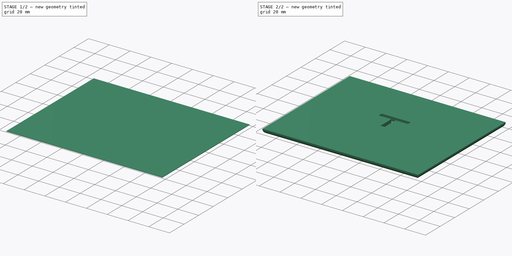
[diagram: build sequence overview — one tinted view per stage of 2, left to right]
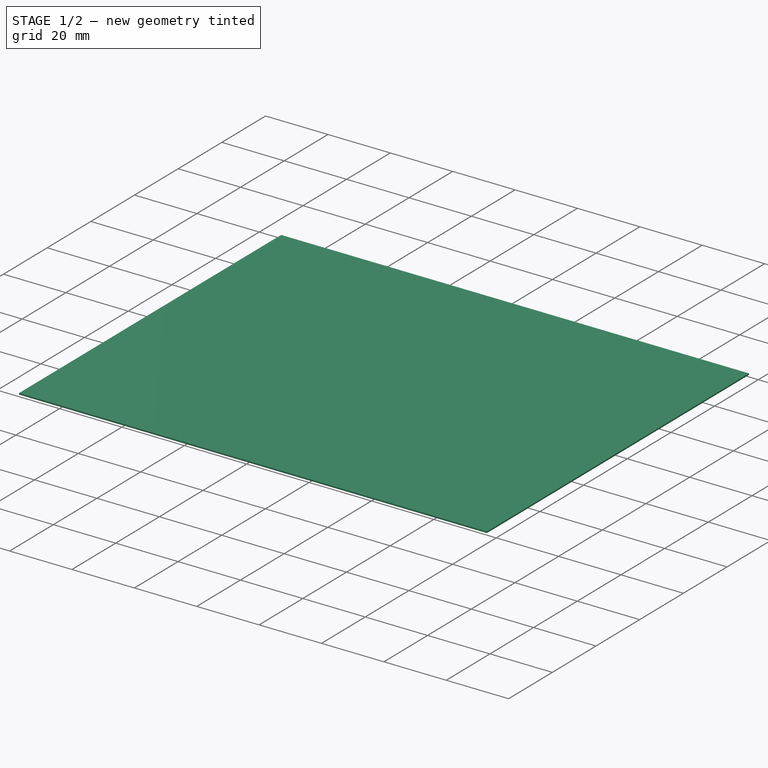
[diagram: stage 1 of 2 — iso view after this stage's code; geometry added in this stage tinted green]
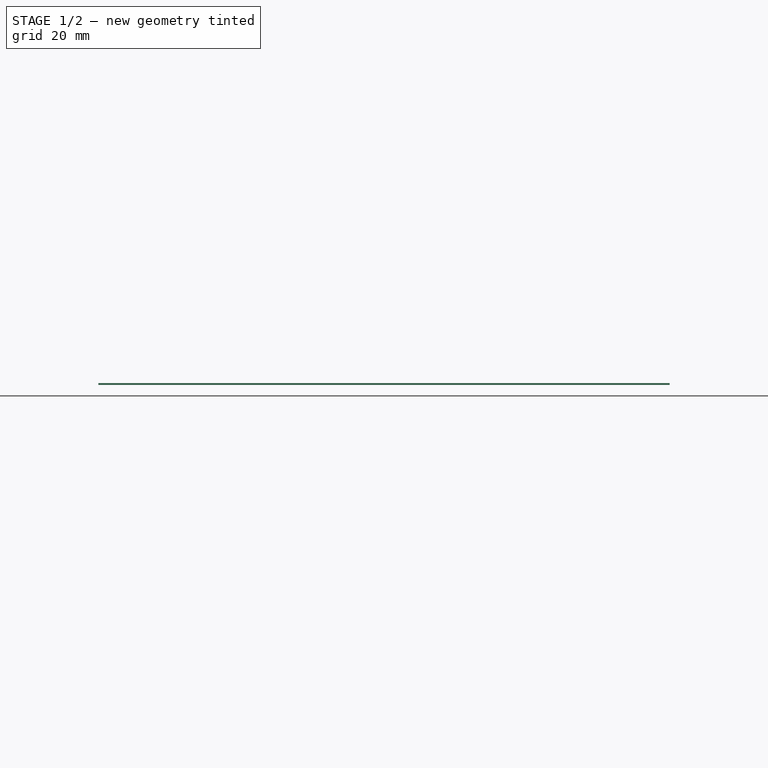
[diagram: stage 1 of 2 — front view after this stage's code; geometry added in this stage tinted green]
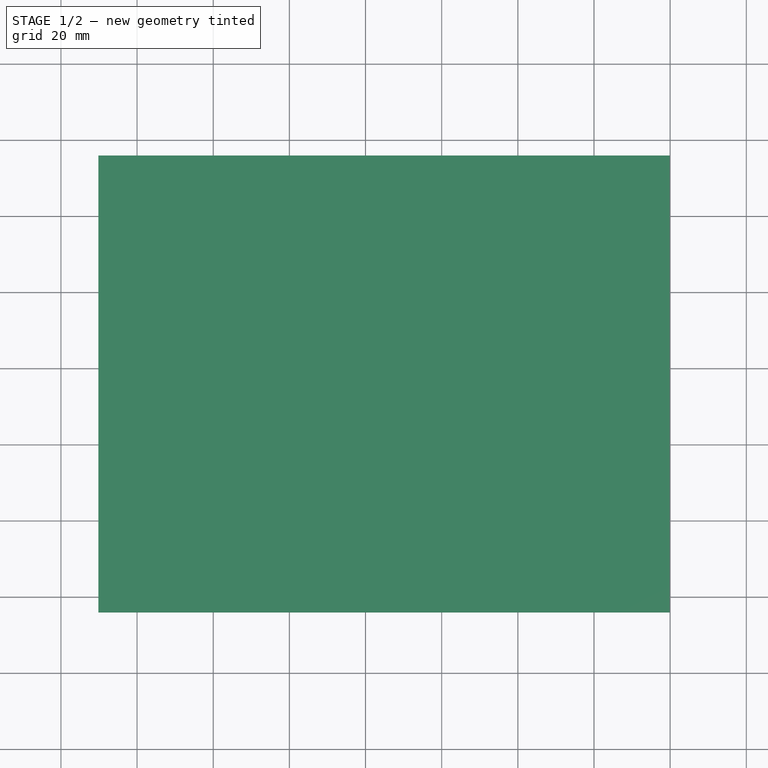
[diagram: stage 1 of 2 — top view after this stage's code; geometry added in this stage tinted green]
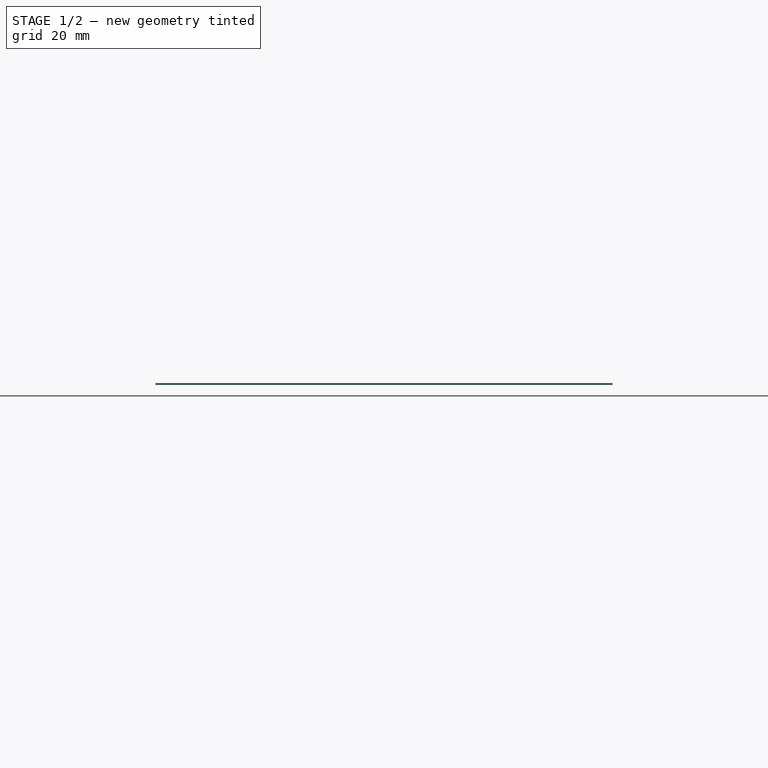
[diagram: stage 1 of 2 — right view after this stage's code; geometry added in this stage tinted green]
FCSTD DOCUMENT  (FreeCAD 1.0R39285 (Git))
Label: upper-hat-02-athena
License: All rights reserved
LicenseURL: http://en.wikipedia.org/wiki/All_rights_reserved
objects: Part::Feature×14, Measure::MeasureDistance×4, PartDesign::Pad×3, Sketcher::SketchObject×2, PartDesign::Fillet×1, PartDesign::Body×1, App::Part×1, App::DocumentObjectGroup×1
note: 31 computed .brp shape members not serialized (recipe doc carries the construction recipe); baked Part::Feature solids carry a one-line shape summary decoded from their .brp

FEATURE [Part::Feature] Component014_solid  label="Component014 (Solid)"
  shape: large baked B-rep (38 MB .brp); summary skipped
FEATURE [Part::Feature] Component015_solid  label="Component015 (Solid)"
  shape: bbox 5.873 x 11.17 x 2 mm, 18942 faces (baked)
FEATURE [Part::Feature] Component016_solid  label="Component016 (Solid)"
  shape: bbox 17.33 x 12.25 x 2 mm, 18252 faces (baked)
FEATURE [Part::Feature] Component017_solid  label="Component017 (Solid)"
  shape: bbox 10.49 x 16.82 x 2 mm, 17762 faces (baked)
FEATURE [Part::Feature] Component018_solid  label="Component018 (Solid)"
  shape: bbox 22.46 x 27.97 x 2 mm, 9172 faces (baked)
FEATURE [Part::Feature] Component019_solid  label="Component019 (Solid)"
  shape: bbox 10.63 x 8.769 x 2 mm, 8274 faces (baked)
FEATURE [Part::Feature] Component020_solid  label="Component020 (Solid)"
  shape: bbox 12.09 x 10.88 x 2 mm, 7854 faces (baked)
FEATURE [Part::Feature] Component021_solid  label="Component021 (Solid)"
  shape: bbox 3.992 x 28.58 x 2 mm, 5890 faces (baked)
FEATURE [Part::Feature] Component022_solid  label="Component022 (Solid)"
  shape: bbox 0.9399 x 1.149 x 2 mm, 3236 faces (baked)
FEATURE [Part::Feature] Component023_solid  label="Component023 (Solid)"
  shape: bbox 1.412 x 1.411 x 2 mm, 2420 faces (baked)
FEATURE [Part::Feature] Component024_solid  label="Component024 (Solid)"
  shape: bbox 1.423 x 1.424 x 2 mm, 2280 faces (baked)
FEATURE [Part::Feature] Component025_solid  label="Component025 (Solid)"
  shape: bbox 12.37 x 9.839 x 2 mm, 1952 faces (baked)
FEATURE [Part::Feature] Component026_solid  label="Component026 (Solid)"
  shape: bbox 49.69 x 49.19 x 2 mm, 1544 faces (baked)
FEATURE [Part::Feature] Component027_solid  label="Component027 (Solid)"
  shape: bbox 1.429 x 4.381 x 2 mm, 812 faces (baked)
FEATURE [Sketcher::SketchObject] Sketch008
  ArcFitTolerance = 1e-06
  FullyConstrained = true
  MakeInternals = false
  Placement = pos=(17.35,5.45,0) rot=(0,0,1;1.5708rad)
  sketch-geometry (15):
    g0: GeomPoint [constr] X=-14.5 Y=-7.5 Z=0
    g1: LineSegment [constr] StartX=-16.5 StartY=6.5 StartZ=0 EndX=-16.5 EndY=-5.5 EndZ=0
    g2: LineSegment [constr] StartX=-16.5 StartY=-21.5 StartZ=0 EndX=-12.5 EndY=-21.5 EndZ=0
    g3: LineSegment [constr] StartX=-12.5 StartY=-21.5 StartZ=0 EndX=-12.5 EndY=6.5 EndZ=0
    g4: LineSegment [constr] StartX=-12.5 StartY=6.5 StartZ=0 EndX=-16.5 EndY=6.5 EndZ=0
    g5: GeomPoint [constr] X=-14.5 Y=-7.5 Z=0
    g6: LineSegment StartX=30.5 StartY=-82.5 StartZ=0 EndX=30.5 EndY=67.5 EndZ=0
    g7: LineSegment StartX=30.5 StartY=67.5 StartZ=0 EndX=-89.5 EndY=67.5 EndZ=0
    g8: LineSegment StartX=-89.5 StartY=67.5 StartZ=0 EndX=-89.5 EndY=-82.5 EndZ=0
    g9: LineSegment StartX=-89.5 StartY=-82.5 StartZ=0 EndX=30.5 EndY=-82.5 EndZ=0
    g10: GeomPoint [constr] X=-14.5 Y=-7.5 Z=0
    g11: LineSegment [constr] StartX=-16.5 StartY=-5.5 StartZ=0 EndX=-31.5 EndY=-5.5 EndZ=0
    g12: LineSegment [constr] StartX=-31.5 StartY=-5.5 StartZ=0 EndX=-31.5 EndY=-9.5 EndZ=0
    g13: LineSegment [constr] StartX=-31.5 StartY=-9.5 StartZ=0 EndX=-16.5 EndY=-9.5 EndZ=0
    g14: LineSegment [constr] StartX=-16.5 StartY=-9.5 StartZ=0 EndX=-16.5 EndY=-21.5 EndZ=0
  constraints (41):
    c: Symmetric(g-4,g-3,g0)
    c: Coincident(g14,g2)
    c: Coincident(g2,g3)
    c: Coincident(g3,g4)
    c: Coincident(g4,g1)
    c: Vertical(g1)
    c: Vertical(g3)
    c: Horizontal(g2)
    c: Horizontal(g4)
    c: Symmetric(g3,g1,g5)
    c: Coincident(g5,g0)
    c: DistanceX(g1,g-3) = 0.5
    c: DistanceY(g-4,g3) = 0.5
    c: Coincident(g6,g7)
    c: Coincident(g7,g8)
    c: Coincident(g8,g9)
    c: Coincident(g9,g6)
    c: Vertical(g6)
    c: Vertical(g8)
    c: Horizontal(g7)
    c: Horizontal(g9)
    c: Symmetric(g8,g6,g10)
    c: Coincident(g10,g0)
    c: DistanceY(g8,g8) = 150
    c: DistanceX(g0,g6) = 45
    c: DistanceX(g7,g0) = 75
    c: DistanceY(g6,g0) = 75
    c: DistanceX(g4,g4) = 4
    c: Horizontal(g11)
    c: Coincident(g11,g12)
    c: Vertical(g12)
    c: Coincident(g12,g13)
    c: PointOnObject(g13,g14)
    c: Horizontal(g13)
    c: DistanceY(g12,g11) = 4
    c: DistanceY(g0,g11) = 2
    c: DistanceX(g11,g11) = 15
    c: Coincident(g1,g11)
    c: PointOnObject(g14,g13)
    c: Vertical(g14)
    c: DistanceX(g2,g2) = 4
FEATURE [PartDesign::Pad] Pad
  Direction = (0,0,1)
  Length = 0.1
  Length2 = 10
  Midplane = true
  Placement = pos=(17.35,5.45,0) rot=(0,0,1;1.5708rad)
  Profile = -> Sketch008
  ReferenceAxis = -> Sketch008 [N_Axis]
  Suppressed = false
  Type = 0
FEATURE [PartDesign::Pad] Pad001
  BaseFeature = -> Pad
  Direction = (0,0,1)
  Length = 0.4
  Length2 = 10
  Placement = pos=(17.35,5.45,0) rot=(0,0,1;1.5708rad)
  Profile = -> Sketch008
  ReferenceAxis = -> Sketch008 [N_Axis]
  Suppressed = false
  Type = 0
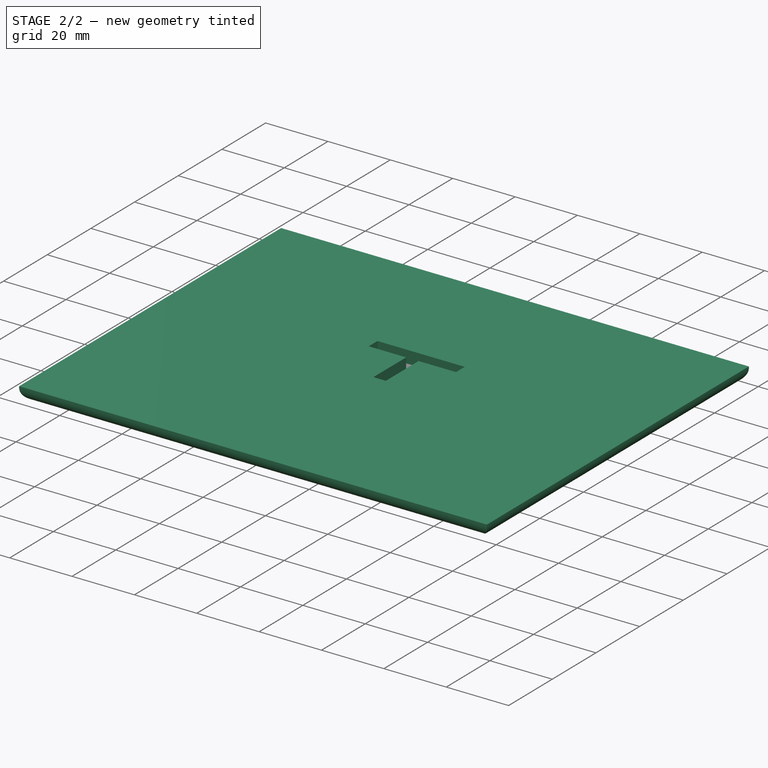
[diagram: stage 2 of 2 — iso view after this stage's code; geometry added in this stage tinted green]
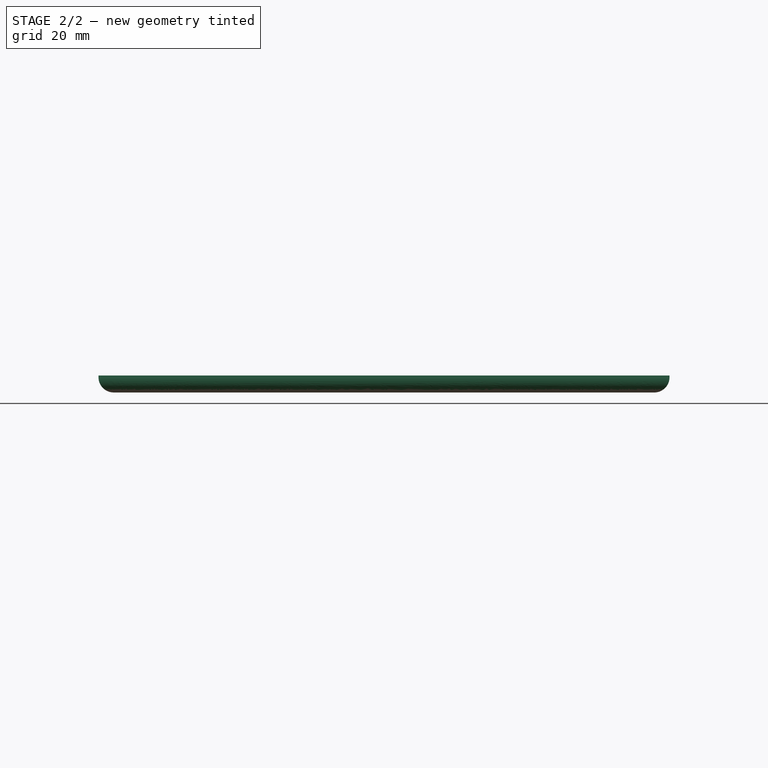
[diagram: stage 2 of 2 — front view after this stage's code; geometry added in this stage tinted green]
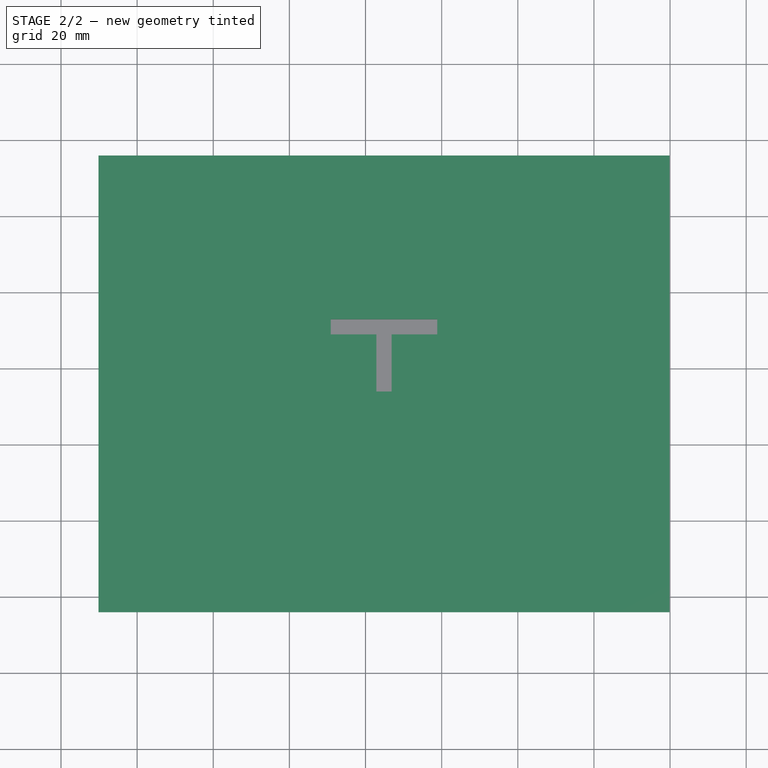
[diagram: stage 2 of 2 — top view after this stage's code; geometry added in this stage tinted green]
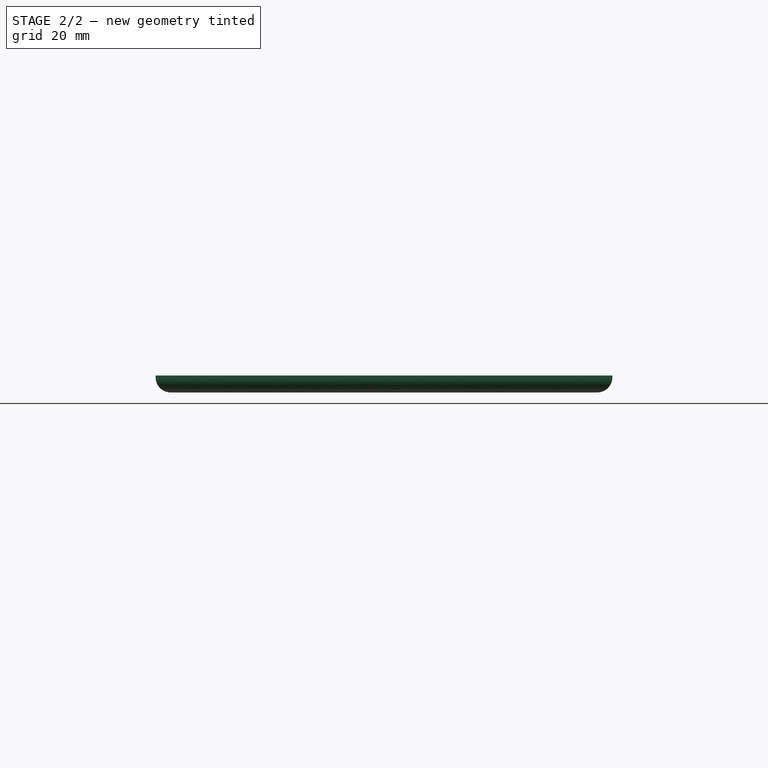
[diagram: stage 2 of 2 — right view after this stage's code; geometry added in this stage tinted green]
FEATURE [Sketcher::SketchObject] Sketch009
  ArcFitTolerance = 1e-06
  AttachmentSupport = -> [Pad001]
  FullyConstrained = true
  MakeInternals = false
  MapMode = 5
  Placement = pos=(17.35,5.45,0.4) rot=(0,0,1;1.5708rad)
  sketch-geometry (15):
    g0: GeomPoint [constr] X=-14.5 Y=-7.5 Z=0
    g1: LineSegment StartX=-16.5 StartY=6.5 StartZ=0 EndX=-16.5 EndY=-5.5 EndZ=0
    g2: LineSegment StartX=-16.5 StartY=-21.5 StartZ=0 EndX=-12.5 EndY=-21.5 EndZ=0
    g3: LineSegment StartX=-12.5 StartY=-21.5 StartZ=0 EndX=-12.5 EndY=6.5 EndZ=0
    g4: LineSegment StartX=-12.5 StartY=6.5 StartZ=0 EndX=-16.5 EndY=6.5 EndZ=0
    g5: GeomPoint [constr] X=-14.5 Y=-7.5 Z=0
    g6: LineSegment StartX=30.5 StartY=-82.5 StartZ=0 EndX=30.5 EndY=67.5 EndZ=0
    g7: LineSegment StartX=30.5 StartY=67.5 StartZ=0 EndX=-89.5 EndY=67.5 EndZ=0
    g8: LineSegment StartX=-89.5 StartY=67.5 StartZ=0 EndX=-89.5 EndY=-82.5 EndZ=0
    g9: LineSegment StartX=-89.5 StartY=-82.5 StartZ=0 EndX=30.5 EndY=-82.5 EndZ=0
    g10: GeomPoint [constr] X=-14.5 Y=-7.5 Z=0
    g11: LineSegment StartX=-16.5 StartY=-5.5 StartZ=0 EndX=-31.5 EndY=-5.5 EndZ=0
    g12: LineSegment StartX=-31.5 StartY=-5.5 StartZ=0 EndX=-31.5 EndY=-9.5 EndZ=0
    g13: LineSegment StartX=-31.5 StartY=-9.5 StartZ=0 EndX=-16.5 EndY=-9.5 EndZ=0
    g14: LineSegment StartX=-16.5 StartY=-9.5 StartZ=0 EndX=-16.5 EndY=-21.5 EndZ=0
  constraints (42):
    c: Symmetric(g-4,g-3,g0)
    c: Coincident(g14,g2)
    c: Coincident(g2,g3)
    c: Coincident(g3,g4)
    c: Coincident(g4,g1)
    c: Vertical(g1)
    c: Vertical(g3)
    c: Horizontal(g2)
    c: Horizontal(g4)
    c: Symmetric(g3,g1,g5)
    c: Coincident(g5,g0)
    c: DistanceX(g1,g-3) = 0.5
    c: DistanceY(g-4,g3) = 0.5
    c: Coincident(g6,g7)
    c: Coincident(g7,g8)
    c: Coincident(g8,g9)
    c: Coincident(g9,g6)
    c: Vertical(g6)
    c: Vertical(g8)
    c: Horizontal(g7)
    c: Horizontal(g9)
    c: Symmetric(g8,g6,g10)
    c: Coincident(g10,g0)
    c: DistanceY(g8,g8) = 150
    c: DistanceX(g0,g6) = 45
    c: DistanceX(g7,g0) = 75
    c: DistanceY(g6,g0) = 75
    c: DistanceX(g4,g4) = 4
    c: Horizontal(g11)
    c: Coincident(g11,g12)
    c: Vertical(g12)
    c: Coincident(g12,g13)
    c: PointOnObject(g13,g14)
    c: Horizontal(g13)
    c: DistanceY(g12,g11) = 4
    c: DistanceY(g0,g11) = 2
    c: DistanceX(g11,g11) = 15
    c: Coincident(g1,g11)
    c: PointOnObject(g14,g13)
    c: Vertical(g14)
    c: DistanceX(g2,g2) = 4
    c: DistanceY(g3,g3) = 28
FEATURE [PartDesign::Pad] Pad002
  BaseFeature = -> Pad001
  Direction = (0,0,1)
  Length = 4
  Length2 = 10
  Placement = pos=(17.35,5.45,0) rot=(0,0,1;1.5708rad)
  Profile = -> Sketch009
  ReferenceAxis = -> Sketch009 [N_Axis]
  Suppressed = false
  Type = 0
FEATURE [PartDesign::Fillet] Fillet
  Base = -> Pad002 [Face2]
  BaseFeature = -> Pad002
  Placement = pos=(17.35,5.45,0) rot=(0,0,1;1.5708rad)
  Radius = 4
  SupportTransform = false
  Suppressed = false
  UseAllEdges = false
FEATURE [PartDesign::Body] Body
  AllowCompound = false
  Group = -> [Sketch008,Pad,Pad001,Sketch009,Pad002,Fillet]
  Origin = -> Origin001
  Tip = -> Fillet
FEATURE [App::Part] Part
  Group = -> [Body]
  Origin = -> Origin
FEATURE [Measure::MeasureDistance] Distance  label="Distance: 50.41 mm"
  Distance = 50.4143
  DistanceX = 50.2593
  DistanceY = 2.13e-14
  DistanceZ = 3.95
  Element1 = -> Part [Body.Fillet.Edge9]
  Element2 = -> Component026_solid [Face968]
  Position1 = (99.85,-21.7944,3.95)
  Position2 = (49.5907,-21.7944,0)
FEATURE [Measure::MeasureDistance] Distance002  label="Distance002: 35.16 mm"
  Distance = 35.1612
  DistanceX = 1.42e-14
  DistanceY = 34.8568
  DistanceZ = 4.61667
  Element1 = -> Component026_solid [Face92]
  Element2 = -> Part [Body.Fillet.Face9]
  Position1 = (24.2002,-49.1932,-0.666667)
  Position2 = (24.2002,-84.05,3.95)
FEATURE [Measure::MeasureDistance] Distance003  label="Distance003: 50.31 mm"
  Distance = 50.3142
  DistanceX = 50.1589
  DistanceY = 1.42e-14
  DistanceZ = 3.95
  Element1 = -> Component026_solid [Face758]
  Element2 = -> Part [Body.Fillet.Face8]
  Position1 = (0.00888646,-23.8464,0)
  Position2 = (-50.15,-23.8464,3.95)
FEATURE [Measure::MeasureDistance] Distance004  label="Distance004: 36.44 mm"
  Distance = 36.4437
  DistanceX = 1.42e-14
  DistanceY = 35.9547
  DistanceZ = 5.95
  Element1 = -> Part [Body.Fillet.Face6]
  Element2 = -> Component026_solid [Face1451]
  Position1 = (24.3704,35.95,3.95)
  Position2 = (24.3704,-0.00468436,-2)
FEATURE [App::DocumentObjectGroup] Measurements
  Group = -> [Distance,Distance002,Distance003,Distance004]
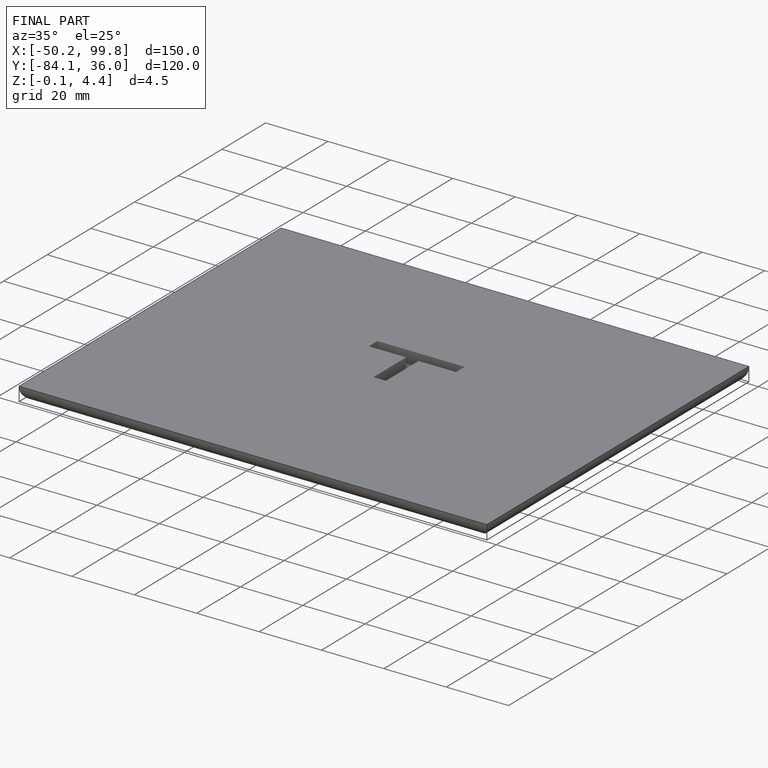
[diagram: finished part — iso view with bounding-box wireframe]
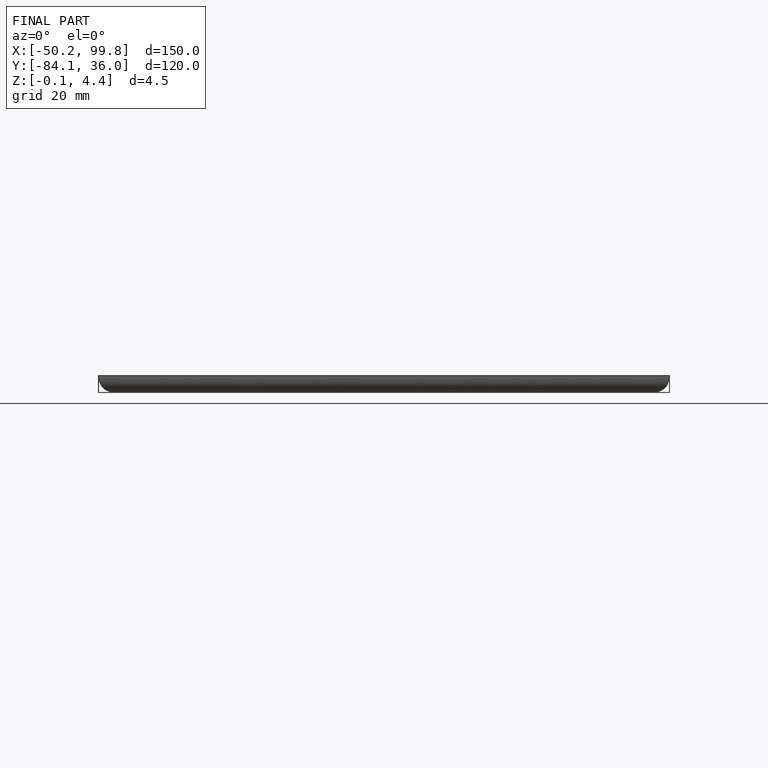
[diagram: finished part — front view with bounding-box wireframe]
